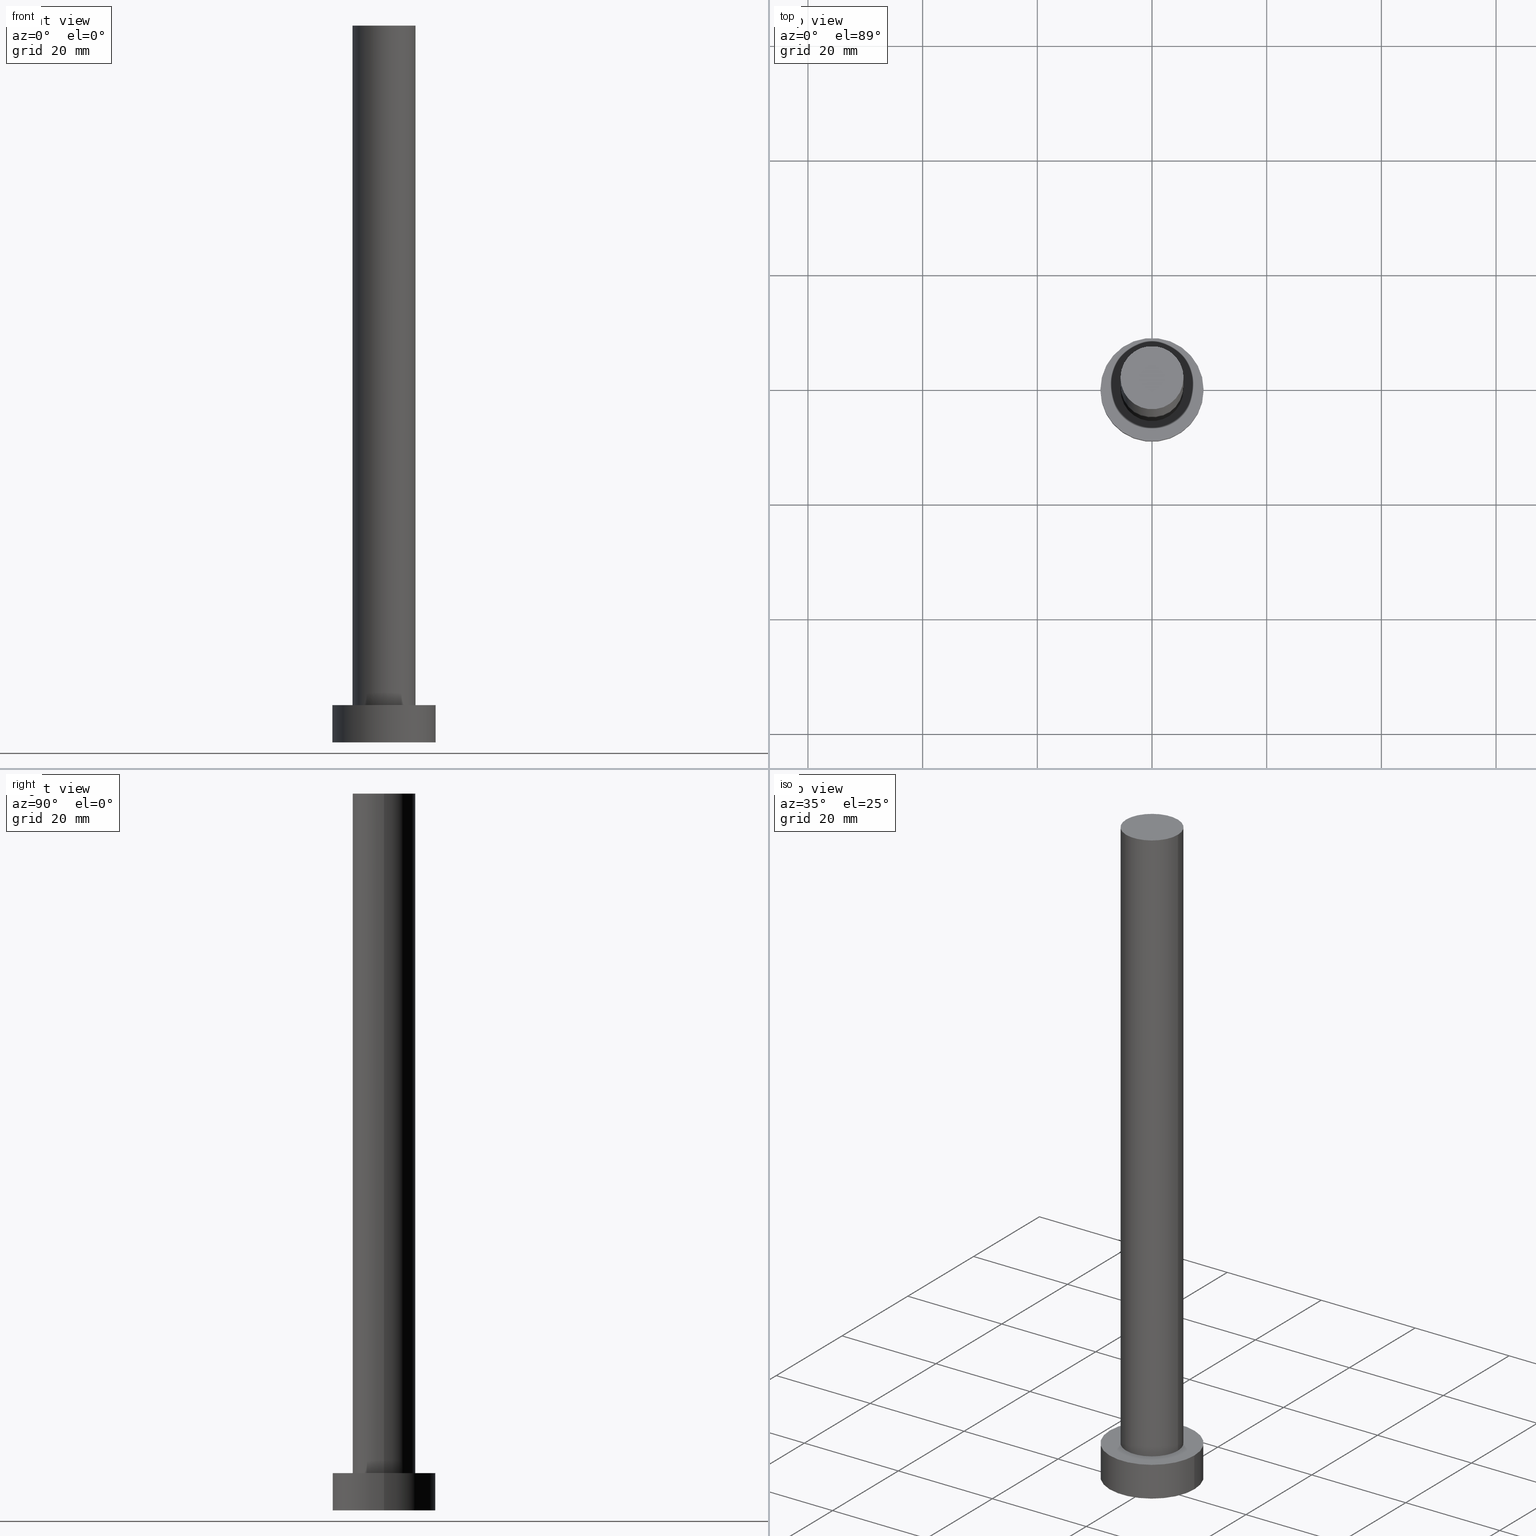
[diagram: canonical four-view strip — front | top / right | iso, engineering-drawing reading convention]
A machine part, canonical four-view strip (front | top / right | iso — engineering-drawing reading convention). The complete STEP part file that produces these views, byte-faithful:
ISO-10303-21;
HEADER;
FILE_DESCRIPTION (( 'STEP AP203' ),
    '1' );
FILE_NAME ('3bd3.STEP',
    '2023-02-13T12:20:41',
    ( '' ),
    ( '' ),
    'SwSTEP 2.0',
    'SolidWorks 2019',
    '' );
FILE_SCHEMA (( 'CONFIG_CONTROL_DESIGN' ));
ENDSEC;

DATA;
#1 = ORIENTED_EDGE ( 'NONE', *, *, #9, .F. ) ;
#2 = APPROVAL_PERSON_ORGANIZATION ( #161, #214, #252 ) ;
#3 = CARTESIAN_POINT ( 'NONE',  ( -5.500000000000000000, 0.000000000000000000, 125.0000000000000000 ) ) ;
#4 = DIRECTION ( 'NONE',  ( 0.000000000000000000, 0.000000000000000000, 1.000000000000000000 ) ) ;
#5 = DIRECTION ( 'NONE',  ( -0.000000000000000000, -0.000000000000000000, -1.000000000000000000 ) ) ;
#6 = ADVANCED_FACE ( 'NONE', ( #224 ), #112, .T. ) ;
#7 = DATE_AND_TIME ( #101, #255 ) ;
#8 = PERSON_AND_ORGANIZATION ( #197, #175 ) ;
#9 = EDGE_CURVE ( 'NONE', #146, #51, #177, .T. ) ;
#10 = CALENDAR_DATE ( 2023, 13, 2 ) ;
#11 = VERTEX_POINT ( 'NONE', #221 ) ;
#12 = CC_DESIGN_APPROVAL ( #93, ( #247 ) ) ;
#13 = DIRECTION ( 'NONE',  ( 0.000000000000000000, 0.000000000000000000, 1.000000000000000000 ) ) ;
#14 = DIRECTION ( 'NONE',  ( -0.000000000000000000, -0.000000000000000000, -1.000000000000000000 ) ) ;
#15 = VECTOR ( 'NONE', #97, 1000.000000000000000 ) ;
#16 = APPROVAL ( #210, 'NEUR�EN�' ) ;
#17 = ORIENTED_EDGE ( 'NONE', *, *, #194, .F. ) ;
#18 = CARTESIAN_POINT ( 'NONE',  ( 0.000000000000000000, 0.000000000000000000, 0.000000000000000000 ) ) ;
#19 = AXIS2_PLACEMENT_3D ( 'NONE', #173, #71, #238 ) ;
#20 = DIRECTION ( 'NONE',  ( 1.000000000000000000, 0.000000000000000000, 0.000000000000000000 ) ) ;
#21 = EDGE_LOOP ( 'NONE', ( #183, #17, #48, #248 ) ) ;
#22 = LINE ( 'NONE', #3, #42 ) ;
#23 = DIRECTION ( 'NONE',  ( -0.000000000000000000, -0.000000000000000000, -1.000000000000000000 ) ) ;
#24 = AXIS2_PLACEMENT_3D ( 'NONE', #184, #223, #63 ) ;
#25 = AXIS2_PLACEMENT_3D ( 'NONE', #95, #159, #225 ) ;
#26 = FACE_BOUND ( 'NONE', #201, .T. ) ;
#27 = ADVANCED_BREP_SHAPE_REPRESENTATION ( '3bd3', ( #89, #222 ), #70 ) ;
#28 = CALENDAR_DATE ( 2023, 13, 2 ) ;
#29 = COORDINATED_UNIVERSAL_TIME_OFFSET ( 1, 0, .AHEAD. ) ;
#30 = EDGE_CURVE ( 'NONE', #39, #166, #22, .T. ) ;
#31 = EDGE_LOOP ( 'NONE', ( #168, #152, #236, #105 ) ) ;
#32 = APPROVAL_DATE_TIME ( #246, #214 ) ;
#33 = CIRCLE ( 'NONE', #150, 5.500000000000000000 ) ;
#34 = ORIENTED_EDGE ( 'NONE', *, *, #123, .T. ) ;
#35 = ADVANCED_FACE ( 'NONE', ( #158 ), #40, .T. ) ;
#36 = DIRECTION ( 'NONE',  ( -1.000000000000000000, 0.000000000000000000, 0.000000000000000000 ) ) ;
#37 = ORIENTED_EDGE ( 'NONE', *, *, #219, .F. ) ;
#38 = CIRCLE ( 'NONE', #188, 5.500000000000000000 ) ;
#39 = VERTEX_POINT ( 'NONE', #245 ) ;
#40 = PLANE ( 'NONE',  #111 ) ;
#41 = EDGE_CURVE ( 'NONE', #67, #166, #69, .T. ) ;
#42 = VECTOR ( 'NONE', #77, 1000.000000000000000 ) ;
#43 = APPROVAL_PERSON_ORGANIZATION ( #212, #93, #163 ) ;
#44 = CALENDAR_DATE ( 2023, 13, 2 ) ;
#45 = COORDINATED_UNIVERSAL_TIME_OFFSET ( 1, 0, .AHEAD. ) ;
#46 = ORIENTED_EDGE ( 'NONE', *, *, #237, .T. ) ;
#47 = PERSON_AND_ORGANIZATION_ROLE ( 'classification_officer' ) ;
#48 = ORIENTED_EDGE ( 'NONE', *, *, #119, .T. ) ;
#49 = AXIS2_PLACEMENT_3D ( 'NONE', #240, #99, #36 ) ;
#50 = CARTESIAN_POINT ( 'NONE',  ( 0.000000000000000000, 0.000000000000000000, 6.500000000000000000 ) ) ;
#51 = VERTEX_POINT ( 'NONE', #74 ) ;
#52 = CYLINDRICAL_SURFACE ( 'NONE', #19, 5.500000000000000000 ) ;
#53 = CYLINDRICAL_SURFACE ( 'NONE', #78, 9.000000000000000000 ) ;
#54 = EDGE_LOOP ( 'NONE', ( #84, #160 ) ) ;
#55 = SHAPE_DEFINITION_REPRESENTATION ( #209, #27 ) ;
#56 = APPLICATION_PROTOCOL_DEFINITION ( 'international standard', 'config_control_design', 1994, #133 ) ;
#57 = DIRECTION ( 'NONE',  ( 1.000000000000000000, 0.000000000000000000, -0.000000000000000000 ) ) ;
#58 = DIRECTION ( 'NONE',  ( 0.000000000000000000, 0.000000000000000000, 1.000000000000000000 ) ) ;
#59 = CIRCLE ( 'NONE', #211, 9.000000000000000000 ) ;
#60 = APPLICATION_CONTEXT ( 'configuration controlled 3d designs of mechanical parts and assemblies' ) ;
#61 = DIRECTION ( 'NONE',  ( 0.000000000000000000, 0.000000000000000000, 1.000000000000000000 ) ) ;
#62 = CC_DESIGN_PERSON_AND_ORGANIZATION_ASSIGNMENT ( #65, #164, ( #247 ) ) ;
#63 = DIRECTION ( 'NONE',  ( 1.000000000000000000, 0.000000000000000000, 0.000000000000000000 ) ) ;
#64 = ORIENTED_EDGE ( 'NONE', *, *, #30, .T. ) ;
#65 = PERSON_AND_ORGANIZATION ( #197, #175 ) ;
#66 = SECURITY_CLASSIFICATION ( '', '', #249 ) ;
#67 = VERTEX_POINT ( 'NONE', #116 ) ;
#68 = DIRECTION ( 'NONE',  ( 1.000000000000000000, 0.000000000000000000, 0.000000000000000000 ) ) ;
#69 = CIRCLE ( 'NONE', #192, 5.500000000000000000 ) ;
#70 =( GEOMETRIC_REPRESENTATION_CONTEXT ( 3 ) GLOBAL_UNCERTAINTY_ASSIGNED_CONTEXT ( ( #130 ) ) GLOBAL_UNIT_ASSIGNED_CONTEXT ( ( #157, #203, #76 ) ) REPRESENTATION_CONTEXT ( 'NONE', 'WORKASPACE' ) );
#71 = DIRECTION ( 'NONE',  ( -0.000000000000000000, -0.000000000000000000, -1.000000000000000000 ) ) ;
#72 = CC_DESIGN_SECURITY_CLASSIFICATION ( #66, ( #247 ) ) ;
#73 = EDGE_CURVE ( 'NONE', #51, #146, #59, .T. ) ;
#74 = CARTESIAN_POINT ( 'NONE',  ( -9.000000000000000000, 0.000000000000000000, 0.000000000000000000 ) ) ;
#75 = CARTESIAN_POINT ( 'NONE',  ( 0.000000000000000000, 0.000000000000000000, 0.000000000000000000 ) ) ;
#76 =( NAMED_UNIT ( * ) SI_UNIT ( $, .STERADIAN. ) SOLID_ANGLE_UNIT ( ) );
#77 = DIRECTION ( 'NONE',  ( -0.000000000000000000, -0.000000000000000000, -1.000000000000000000 ) ) ;
#78 = AXIS2_PLACEMENT_3D ( 'NONE', #50, #126, #181 ) ;
#79 = CARTESIAN_POINT ( 'NONE',  ( -9.000000000000000000, 0.000000000000000000, 6.500000000000000000 ) ) ;
#80 = DATE_TIME_ROLE ( 'creation_date' ) ;
#81 = CARTESIAN_POINT ( 'NONE',  ( 0.000000000000000000, 0.000000000000000000, 6.500000000000000000 ) ) ;
#82 = APPROVAL_ROLE ( '' ) ;
#83 = EDGE_CURVE ( 'NONE', #124, #67, #154, .T. ) ;
#84 = ORIENTED_EDGE ( 'NONE', *, *, #250, .T. ) ;
#85 = APPROVAL_DATE_TIME ( #7, #93 ) ;
#86 = EDGE_LOOP ( 'NONE', ( #253, #34 ) ) ;
#87 = APPROVAL_STATUS ( 'not_yet_approved' ) ;
#88 = EDGE_LOOP ( 'NONE', ( #121, #1 ) ) ;
#89 = MANIFOLD_SOLID_BREP ( 'P�idat vysunut�m3', #104 ) ;
#90 = FACE_OUTER_BOUND ( 'NONE', #135, .T. ) ;
#91 = DIRECTION ( 'NONE',  ( 0.000000000000000000, 0.000000000000000000, 1.000000000000000000 ) ) ;
#92 = VECTOR ( 'NONE', #23, 1000.000000000000000 ) ;
#93 = APPROVAL ( #169, 'NEUR�EN�' ) ;
#94 = CARTESIAN_POINT ( 'NONE',  ( 0.000000000000000000, 0.000000000000000000, 6.500000000000000000 ) ) ;
#95 = CARTESIAN_POINT ( 'NONE',  ( 0.000000000000000000, 0.000000000000000000, 125.0000000000000000 ) ) ;
#96 = DIRECTION ( 'NONE',  ( 1.000000000000000000, 0.000000000000000000, 0.000000000000000000 ) ) ;
#97 = DIRECTION ( 'NONE',  ( -0.000000000000000000, -0.000000000000000000, -1.000000000000000000 ) ) ;
#98 = DATE_AND_TIME ( #28, #243 ) ;
#99 = DIRECTION ( 'NONE',  ( -0.000000000000000000, -0.000000000000000000, -1.000000000000000000 ) ) ;
#100 = COORDINATED_UNIVERSAL_TIME_OFFSET ( 1, 0, .AHEAD. ) ;
#101 = CALENDAR_DATE ( 2023, 13, 2 ) ;
#102 = DATE_AND_TIME ( #10, #137 ) ;
#103 = EDGE_CURVE ( 'NONE', #11, #146, #110, .T. ) ;
#104 = CLOSED_SHELL ( 'NONE', ( #185, #180, #206, #149, #165, #6, #35 ) ) ;
#105 = ORIENTED_EDGE ( 'NONE', *, *, #119, .F. ) ;
#106 = APPROVAL_PERSON_ORGANIZATION ( #231, #16, #82 ) ;
#107 = DIRECTION ( 'NONE',  ( 1.000000000000000000, 0.000000000000000000, -0.000000000000000000 ) ) ;
#108 = FACE_OUTER_BOUND ( 'NONE', #88, .T. ) ;
#109 = PLANE ( 'NONE',  #251 ) ;
#110 = LINE ( 'NONE', #241, #242 ) ;
#111 = AXIS2_PLACEMENT_3D ( 'NONE', #138, #244, #57 ) ;
#112 = CYLINDRICAL_SURFACE ( 'NONE', #49, 5.500000000000000000 ) ;
#113 = CC_DESIGN_APPROVAL ( #16, ( #229 ) ) ;
#114 = CC_DESIGN_DATE_AND_TIME_ASSIGNMENT ( #120, #80, ( #229 ) ) ;
#115 = DIRECTION ( 'NONE',  ( 1.000000000000000000, 0.000000000000000000, 0.000000000000000000 ) ) ;
#116 = CARTESIAN_POINT ( 'NONE',  ( 5.500000000000000000, 6.735557395310442023E-16, 6.500000000000000000 ) ) ;
#117 = AXIS2_PLACEMENT_3D ( 'NONE', #81, #162, #218 ) ;
#118 = LINE ( 'NONE', #79, #15 ) ;
#119 = EDGE_CURVE ( 'NONE', #190, #51, #118, .T. ) ;
#120 = DATE_AND_TIME ( #44, #131 ) ;
#121 = ORIENTED_EDGE ( 'NONE', *, *, #73, .F. ) ;
#122 = APPLICATION_PROTOCOL_DEFINITION ( 'international standard', 'config_control_design', 1994, #60 ) ;
#123 = EDGE_CURVE ( 'NONE', #11, #190, #170, .T. ) ;
#124 = VERTEX_POINT ( 'NONE', #139 ) ;
#125 = ORIENTED_EDGE ( 'NONE', *, *, #41, .T. ) ;
#126 = DIRECTION ( 'NONE',  ( -0.000000000000000000, -0.000000000000000000, -1.000000000000000000 ) ) ;
#127 = CC_DESIGN_PERSON_AND_ORGANIZATION_ASSIGNMENT ( #189, #167, ( #247 ) ) ;
#128 = CARTESIAN_POINT ( 'NONE',  ( -9.000000000000000000, 0.000000000000000000, 6.500000000000000000 ) ) ;
#129 = EDGE_LOOP ( 'NONE', ( #226, #171, #64, #46 ) ) ;
#130 = UNCERTAINTY_MEASURE_WITH_UNIT (LENGTH_MEASURE( 1.000000000000000082E-05 ), #157, 'distance_accuracy_value', 'NONE');
#131 = LOCAL_TIME ( 13, 20, 41.00000000000000000, #29 ) ;
#132 = FACE_OUTER_BOUND ( 'NONE', #86, .T. ) ;
#133 = APPLICATION_CONTEXT ( 'configuration controlled 3d designs of mechanical parts and assemblies' ) ;
#134 = DIRECTION ( 'NONE',  ( 1.000000000000000000, 0.000000000000000000, 0.000000000000000000 ) ) ;
#135 = EDGE_LOOP ( 'NONE', ( #37, #143, #125, #195 ) ) ;
#136 = DIRECTION ( 'NONE',  ( 1.000000000000000000, 0.000000000000000000, 0.000000000000000000 ) ) ;
#137 = LOCAL_TIME ( 13, 20, 41.00000000000000000, #213 ) ;
#138 = CARTESIAN_POINT ( 'NONE',  ( 0.000000000000000000, 0.000000000000000000, 125.0000000000000000 ) ) ;
#139 = CARTESIAN_POINT ( 'NONE',  ( 5.500000000000000000, 6.735557395310442023E-16, 125.0000000000000000 ) ) ;
#140 = CC_DESIGN_PERSON_AND_ORGANIZATION_ASSIGNMENT ( #8, #142, ( #156 ) ) ;
#141 = CIRCLE ( 'NONE', #148, 9.000000000000000000 ) ;
#142 = PERSON_AND_ORGANIZATION_ROLE ( 'design_owner' ) ;
#143 = ORIENTED_EDGE ( 'NONE', *, *, #83, .T. ) ;
#144 = PERSON_AND_ORGANIZATION ( #197, #175 ) ;
#145 = COORDINATED_UNIVERSAL_TIME_OFFSET ( 1, 0, .AHEAD. ) ;
#146 = VERTEX_POINT ( 'NONE', #208 ) ;
#147 = FACE_OUTER_BOUND ( 'NONE', #21, .T. ) ;
#148 = AXIS2_PLACEMENT_3D ( 'NONE', #254, #91, #68 ) ;
#149 = ADVANCED_FACE ( 'NONE', ( #26, #132 ), #186, .T. ) ;
#150 = AXIS2_PLACEMENT_3D ( 'NONE', #178, #151, #136 ) ;
#151 = DIRECTION ( 'NONE',  ( 0.000000000000000000, 0.000000000000000000, 1.000000000000000000 ) ) ;
#152 = ORIENTED_EDGE ( 'NONE', *, *, #103, .T. ) ;
#153 = DIRECTION ( 'NONE',  ( 0.000000000000000000, 0.000000000000000000, 1.000000000000000000 ) ) ;
#154 = LINE ( 'NONE', #207, #92 ) ;
#155 = CC_DESIGN_PERSON_AND_ORGANIZATION_ASSIGNMENT ( #228, #230, ( #229 ) ) ;
#156 = PRODUCT ( '3bd3', '3bd3', '', ( #220 ) ) ;
#157 =( LENGTH_UNIT ( ) NAMED_UNIT ( * ) SI_UNIT ( .MILLI., .METRE. ) );
#158 = FACE_OUTER_BOUND ( 'NONE', #54, .T. ) ;
#159 = DIRECTION ( 'NONE',  ( 0.000000000000000000, 0.000000000000000000, 1.000000000000000000 ) ) ;
#160 = ORIENTED_EDGE ( 'NONE', *, *, #219, .T. ) ;
#161 = PERSON_AND_ORGANIZATION ( #197, #175 ) ;
#162 = DIRECTION ( 'NONE',  ( 0.000000000000000000, 0.000000000000000000, 1.000000000000000000 ) ) ;
#163 = APPROVAL_ROLE ( '' ) ;
#164 = PERSON_AND_ORGANIZATION_ROLE ( 'creator' ) ;
#165 = ADVANCED_FACE ( 'NONE', ( #108 ), #109, .F. ) ;
#166 = VERTEX_POINT ( 'NONE', #196 ) ;
#167 = PERSON_AND_ORGANIZATION_ROLE ( 'design_supplier' ) ;
#168 = ORIENTED_EDGE ( 'NONE', *, *, #123, .F. ) ;
#169 = APPROVAL_STATUS ( 'not_yet_approved' ) ;
#170 = CIRCLE ( 'NONE', #24, 9.000000000000000000 ) ;
#171 = ORIENTED_EDGE ( 'NONE', *, *, #250, .F. ) ;
#172 = CC_DESIGN_DATE_AND_TIME_ASSIGNMENT ( #102, #191, ( #66 ) ) ;
#173 = CARTESIAN_POINT ( 'NONE',  ( 0.000000000000000000, 0.000000000000000000, 125.0000000000000000 ) ) ;
#174 = DIRECTION ( 'NONE',  ( -1.000000000000000000, 0.000000000000000000, 0.000000000000000000 ) ) ;
#175 = ORGANIZATION ( 'NEUR�EN�', 'NEUR�EN�', '' ) ;
#176 = CYLINDRICAL_SURFACE ( 'NONE', #227, 9.000000000000000000 ) ;
#177 = CIRCLE ( 'NONE', #202, 9.000000000000000000 ) ;
#178 = CARTESIAN_POINT ( 'NONE',  ( 0.000000000000000000, 0.000000000000000000, 125.0000000000000000 ) ) ;
#179 = CARTESIAN_POINT ( 'NONE',  ( 0.000000000000000000, 0.000000000000000000, 6.500000000000000000 ) ) ;
#180 = ADVANCED_FACE ( 'NONE', ( #216 ), #176, .T. ) ;
#181 = DIRECTION ( 'NONE',  ( -1.000000000000000000, 0.000000000000000000, 0.000000000000000000 ) ) ;
#182 = DIRECTION ( 'NONE',  ( 1.000000000000000000, 0.000000000000000000, 0.000000000000000000 ) ) ;
#183 = ORIENTED_EDGE ( 'NONE', *, *, #103, .F. ) ;
#184 = CARTESIAN_POINT ( 'NONE',  ( 0.000000000000000000, 0.000000000000000000, 6.500000000000000000 ) ) ;
#185 = ADVANCED_FACE ( 'NONE', ( #90 ), #52, .T. ) ;
#186 = PLANE ( 'NONE',  #117 ) ;
#187 = APPROVAL_DATE_TIME ( #98, #16 ) ;
#188 = AXIS2_PLACEMENT_3D ( 'NONE', #94, #205, #20 ) ;
#189 = PERSON_AND_ORGANIZATION ( #197, #175 ) ;
#190 = VERTEX_POINT ( 'NONE', #128 ) ;
#191 = DATE_TIME_ROLE ( 'classification_date' ) ;
#192 = AXIS2_PLACEMENT_3D ( 'NONE', #179, #61, #182 ) ;
#193 = CIRCLE ( 'NONE', #25, 5.500000000000000000 ) ;
#194 = EDGE_CURVE ( 'NONE', #190, #11, #141, .T. ) ;
#195 = ORIENTED_EDGE ( 'NONE', *, *, #30, .F. ) ;
#196 = CARTESIAN_POINT ( 'NONE',  ( -5.500000000000000000, 0.000000000000000000, 6.500000000000000000 ) ) ;
#197 = PERSON ( 'NEUR�EN�', 'NEUR�EN�', 'NEUR�EN�', ('NEUR�EN�'), ('NEUR�EN�'), ('NEUR�EN�') ) ;
#198 = CC_DESIGN_PERSON_AND_ORGANIZATION_ASSIGNMENT ( #144, #47, ( #66 ) ) ;
#199 = CARTESIAN_POINT ( 'NONE',  ( 0.000000000000000000, 0.000000000000000000, 6.500000000000000000 ) ) ;
#200 = CC_DESIGN_APPROVAL ( #214, ( #66 ) ) ;
#201 = EDGE_LOOP ( 'NONE', ( #233, #204 ) ) ;
#202 = AXIS2_PLACEMENT_3D ( 'NONE', #18, #4, #115 ) ;
#203 =( NAMED_UNIT ( * ) PLANE_ANGLE_UNIT ( ) SI_UNIT ( $, .RADIAN. ) );
#204 = ORIENTED_EDGE ( 'NONE', *, *, #41, .F. ) ;
#205 = DIRECTION ( 'NONE',  ( 0.000000000000000000, 0.000000000000000000, 1.000000000000000000 ) ) ;
#206 = ADVANCED_FACE ( 'NONE', ( #147 ), #53, .T. ) ;
#207 = CARTESIAN_POINT ( 'NONE',  ( 5.500000000000000000, 6.735557395310442023E-16, 125.0000000000000000 ) ) ;
#208 = CARTESIAN_POINT ( 'NONE',  ( 9.000000000000000000, 1.102182119232617517E-15, 0.000000000000000000 ) ) ;
#209 = PRODUCT_DEFINITION_SHAPE ( 'NONE', 'NONE',  #229 ) ;
#210 = APPROVAL_STATUS ( 'not_yet_approved' ) ;
#211 = AXIS2_PLACEMENT_3D ( 'NONE', #75, #153, #96 ) ;
#212 = PERSON_AND_ORGANIZATION ( #197, #175 ) ;
#213 = COORDINATED_UNIVERSAL_TIME_OFFSET ( 1, 0, .AHEAD. ) ;
#214 = APPROVAL ( #87, 'NEUR�EN�' ) ;
#215 = DESIGN_CONTEXT ( 'detailed design', #60, 'design' ) ;
#216 = FACE_OUTER_BOUND ( 'NONE', #31, .T. ) ;
#217 = CARTESIAN_POINT ( 'NONE',  ( 0.000000000000000000, 0.000000000000000000, 0.000000000000000000 ) ) ;
#218 = DIRECTION ( 'NONE',  ( 1.000000000000000000, 0.000000000000000000, -0.000000000000000000 ) ) ;
#219 = EDGE_CURVE ( 'NONE', #124, #39, #33, .T. ) ;
#220 = MECHANICAL_CONTEXT ( 'NONE', #133, 'mechanical' ) ;
#221 = CARTESIAN_POINT ( 'NONE',  ( 9.000000000000000000, 1.102182119232617517E-15, 6.500000000000000000 ) ) ;
#222 = AXIS2_PLACEMENT_3D ( 'NONE', #239, #58, #134 ) ;
#223 = DIRECTION ( 'NONE',  ( 0.000000000000000000, 0.000000000000000000, 1.000000000000000000 ) ) ;
#224 = FACE_OUTER_BOUND ( 'NONE', #129, .T. ) ;
#225 = DIRECTION ( 'NONE',  ( 1.000000000000000000, 0.000000000000000000, 0.000000000000000000 ) ) ;
#226 = ORIENTED_EDGE ( 'NONE', *, *, #83, .F. ) ;
#227 = AXIS2_PLACEMENT_3D ( 'NONE', #199, #14, #174 ) ;
#228 = PERSON_AND_ORGANIZATION ( #197, #175 ) ;
#229 = PRODUCT_DEFINITION ( 'NEZN�M�', '', #247, #215 ) ;
#230 = PERSON_AND_ORGANIZATION_ROLE ( 'creator' ) ;
#231 = PERSON_AND_ORGANIZATION ( #197, #175 ) ;
#232 = LOCAL_TIME ( 13, 20, 41.00000000000000000, #145 ) ;
#233 = ORIENTED_EDGE ( 'NONE', *, *, #237, .F. ) ;
#234 = CALENDAR_DATE ( 2023, 13, 2 ) ;
#235 = PRODUCT_RELATED_PRODUCT_CATEGORY ( 'detail', '', ( #156 ) ) ;
#236 = ORIENTED_EDGE ( 'NONE', *, *, #9, .T. ) ;
#237 = EDGE_CURVE ( 'NONE', #166, #67, #38, .T. ) ;
#238 = DIRECTION ( 'NONE',  ( -1.000000000000000000, 0.000000000000000000, 0.000000000000000000 ) ) ;
#239 = CARTESIAN_POINT ( 'NONE',  ( 0.000000000000000000, 0.000000000000000000, 0.000000000000000000 ) ) ;
#240 = CARTESIAN_POINT ( 'NONE',  ( 0.000000000000000000, 0.000000000000000000, 125.0000000000000000 ) ) ;
#241 = CARTESIAN_POINT ( 'NONE',  ( 9.000000000000000000, 1.102182119232617517E-15, 6.500000000000000000 ) ) ;
#242 = VECTOR ( 'NONE', #5, 1000.000000000000000 ) ;
#243 = LOCAL_TIME ( 13, 20, 41.00000000000000000, #45 ) ;
#244 = DIRECTION ( 'NONE',  ( 0.000000000000000000, 0.000000000000000000, 1.000000000000000000 ) ) ;
#245 = CARTESIAN_POINT ( 'NONE',  ( -5.500000000000000000, 0.000000000000000000, 125.0000000000000000 ) ) ;
#246 = DATE_AND_TIME ( #234, #232 ) ;
#247 = PRODUCT_DEFINITION_FORMATION_WITH_SPECIFIED_SOURCE ( 'LIBOVOLN�', '', #156, .NOT_KNOWN. ) ;
#248 = ORIENTED_EDGE ( 'NONE', *, *, #73, .T. ) ;
#249 = SECURITY_CLASSIFICATION_LEVEL ( 'unclassified' ) ;
#250 = EDGE_CURVE ( 'NONE', #39, #124, #193, .T. ) ;
#251 = AXIS2_PLACEMENT_3D ( 'NONE', #217, #13, #107 ) ;
#252 = APPROVAL_ROLE ( '' ) ;
#253 = ORIENTED_EDGE ( 'NONE', *, *, #194, .T. ) ;
#254 = CARTESIAN_POINT ( 'NONE',  ( 0.000000000000000000, 0.000000000000000000, 6.500000000000000000 ) ) ;
#255 = LOCAL_TIME ( 13, 20, 41.00000000000000000, #100 ) ;
ENDSEC;
END-ISO-10303-21;
